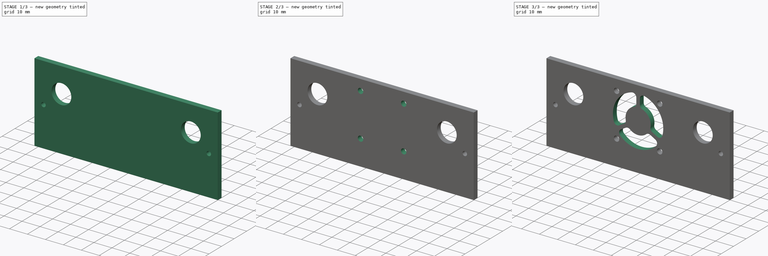
[diagram: build sequence overview — one tinted view per stage of 3, left to right]
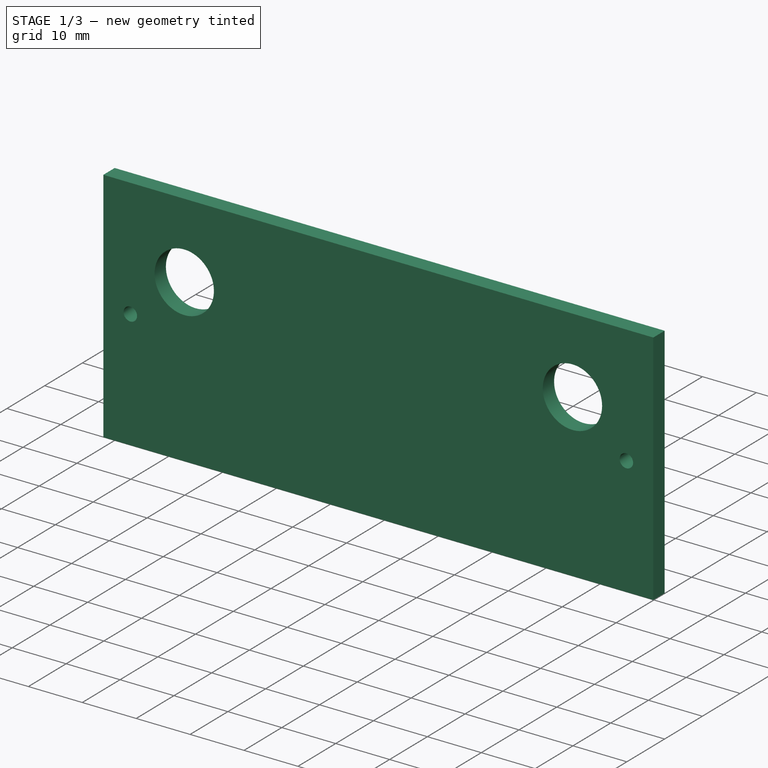
[diagram: stage 1 of 3 — iso view after this stage's code; geometry added in this stage tinted green]
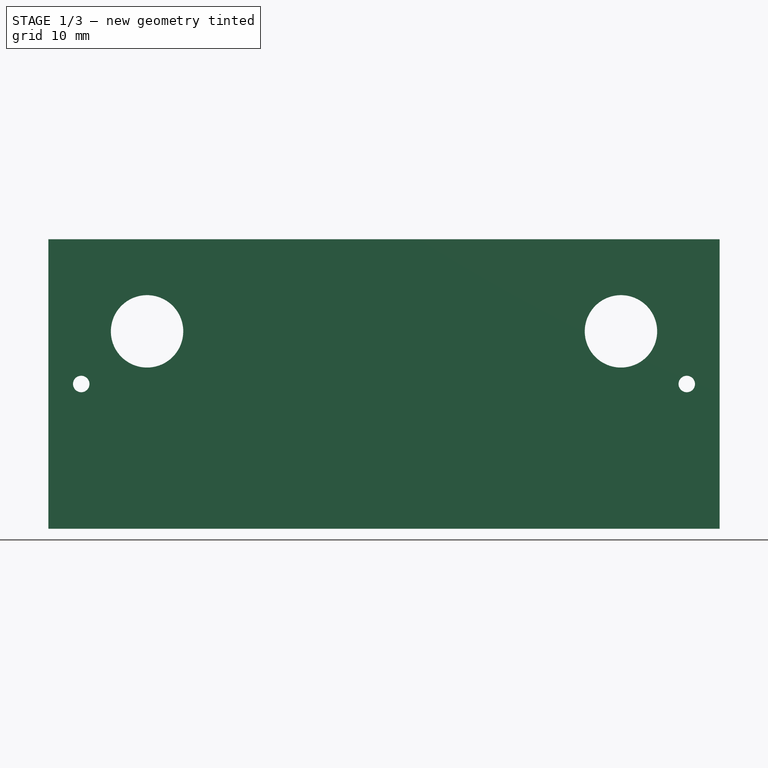
[diagram: stage 1 of 3 — front view after this stage's code; geometry added in this stage tinted green]
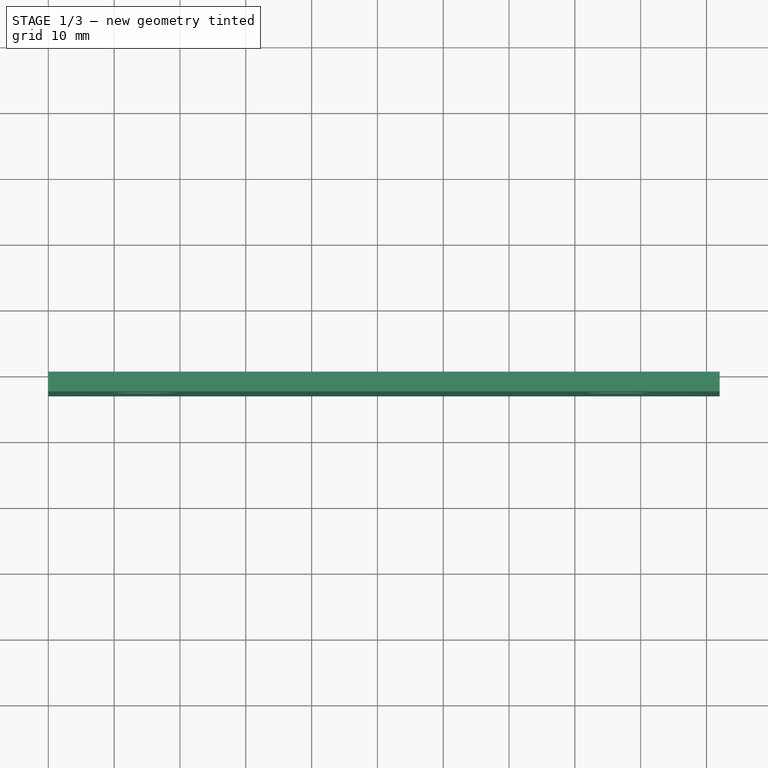
[diagram: stage 1 of 3 — top view after this stage's code; geometry added in this stage tinted green]
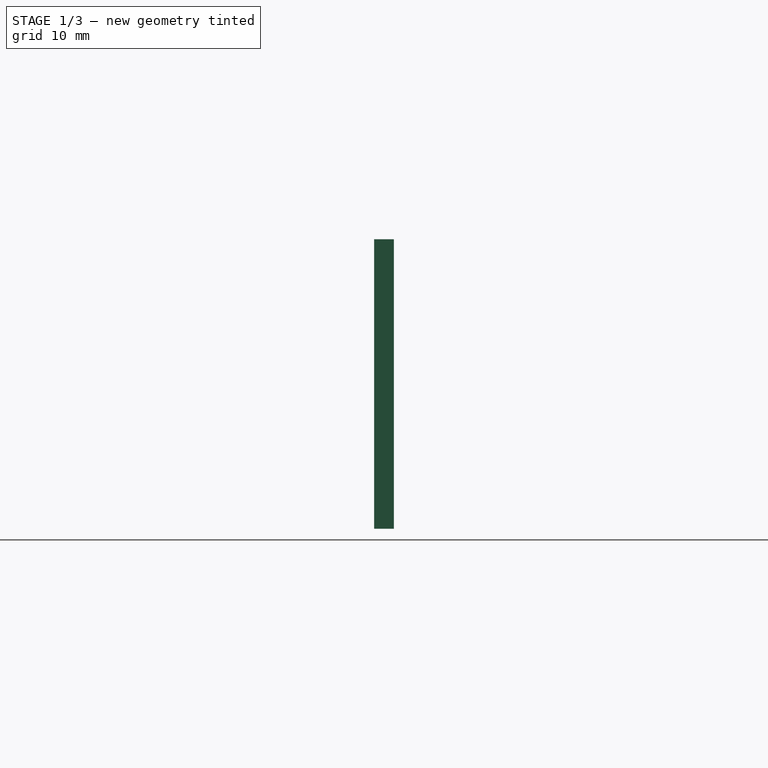
[diagram: stage 1 of 3 — right view after this stage's code; geometry added in this stage tinted green]
FCSTD DOCUMENT  (FreeCAD 0.17R13522 (Git))
Label: Corelia_0_Electronics_fan_plate
License: All rights reserved
LicenseURL: http://en.wikipedia.org/wiki/All_rights_reserved
objects: Sketcher::SketchObject×4, PartDesign::Pocket×3, PartDesign::Pad×1, PartDesign::Fillet×1, PartDesign::Body×1, TechDraw::DrawSVGTemplate×1, TechDraw::DrawViewPart×1, TechDraw::DrawPage×1
note: 14 computed .brp shape members not serialized (recipe doc carries the construction recipe); baked Part::Feature solids carry a one-line shape summary decoded from their .brp

FEATURE [Sketcher::SketchObject] Sketch
  MapMode = 5
  Placement = pos=(0,0,0) rot=(1,0,0;1.5708rad)
  Support = -> [XZ_Plane]
  sketch-geometry (7):
    g0: LineSegment StartX=0 StartY=0 StartZ=0 EndX=102 EndY=0 EndZ=0
    g1: LineSegment StartX=102 StartY=0 StartZ=0 EndX=102 EndY=44 EndZ=0
    g2: LineSegment StartX=102 StartY=44 StartZ=0 EndX=0 EndY=44 EndZ=0
    g3: LineSegment StartX=0 StartY=44 StartZ=0 EndX=0 EndY=0 EndZ=0
    g4: Circle CenterX=5 CenterY=22 CenterZ=0 NormalX=0 NormalY=0 NormalZ=1 AngleXU=0 Radius=1.25
    g5: Circle CenterX=97 CenterY=22 CenterZ=0 NormalX=0 NormalY=0 NormalZ=1 AngleXU=0 Radius=1.25
    g6: LineSegment [constr] StartX=5 StartY=22 StartZ=0 EndX=97 EndY=22 EndZ=0
  constraints (19):
    c: Coincident(g0,g1)
    c: Coincident(g1,g2)
    c: Coincident(g2,g3)
    c: Coincident(g3,g0)
    c: Horizontal(g0)
    c: Horizontal(g2)
    c: Vertical(g1)
    c: Vertical(g3)
    c: Coincident(g0,g-1)
    c: DistanceY(g3,g3) = 44
    c: DistanceX(g0,g0) = 102
    c: Coincident(g6,g4)
    c: Coincident(g6,g5)
    c: Horizontal(g6)
    c: Equal(g4,g5)
    c: DistanceX(g6,g6) = 92
    c: DistanceX(g4) = 5
    c: DistanceY(g4) = 22
    c: Radius(g4) = 1.25
FEATURE [PartDesign::Pad] Pad
  Length = 3
  Length2 = 100
  Placement = pos=(0,0,0) rot=(1,0,0;1.5708rad)
  Profile = -> Sketch
  Type = 0
FEATURE [Sketcher::SketchObject] Sketch001
  MapMode = 5
  Placement = pos=(0,-3,0) rot=(1,0,0;1.5708rad)
  Support = -> [Pad]
  sketch-geometry (3):
    g0: Circle CenterX=15 CenterY=30 CenterZ=0 NormalX=0 NormalY=0 NormalZ=1 AngleXU=0 Radius=5.5
    g1: Circle CenterX=87 CenterY=30 CenterZ=0 NormalX=0 NormalY=0 NormalZ=1 AngleXU=0 Radius=5.5
    g2: LineSegment [constr] StartX=15 StartY=30 StartZ=0 EndX=87 EndY=30 EndZ=0
  constraints (8):
    c: Coincident(g2,g0)
    c: Coincident(g2,g1)
    c: Horizontal(g2)
    c: Radius(g0) = 5.5
    c: Equal(g0,g1)
    c: DistanceX(g0) = 15
    c: DistanceY(g0) = 30
    c: DistanceX(g2,g2) = 72  '102-24'
FEATURE [PartDesign::Pocket] Pocket
  BaseFeature = -> Pad
  Length = 5
  Length2 = 100
  Placement = pos=(0,0,0) rot=(1,0,0;1.5708rad)
  Profile = -> Sketch001
  Type = 1
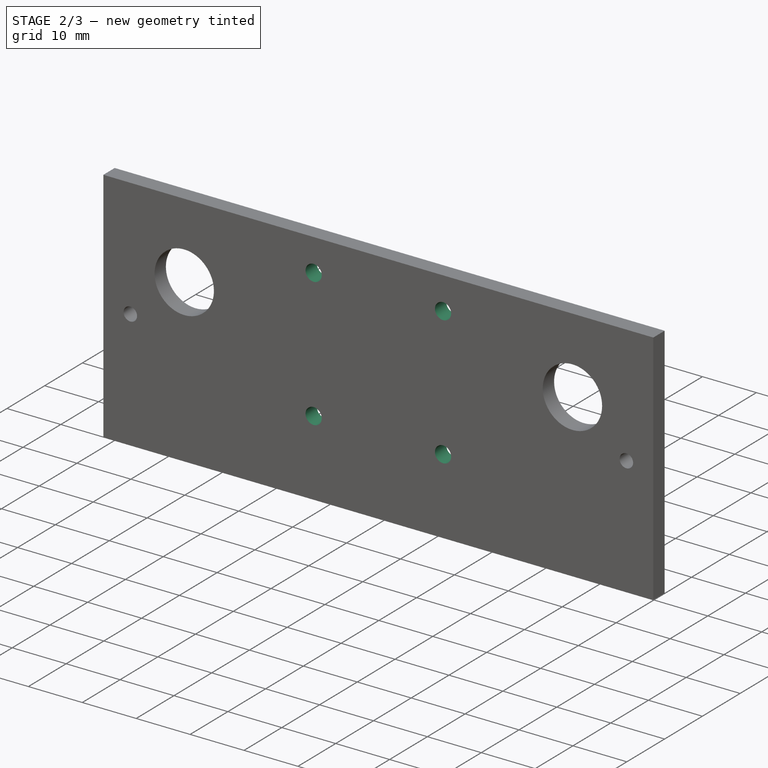
[diagram: stage 2 of 3 — iso view after this stage's code; geometry added in this stage tinted green]
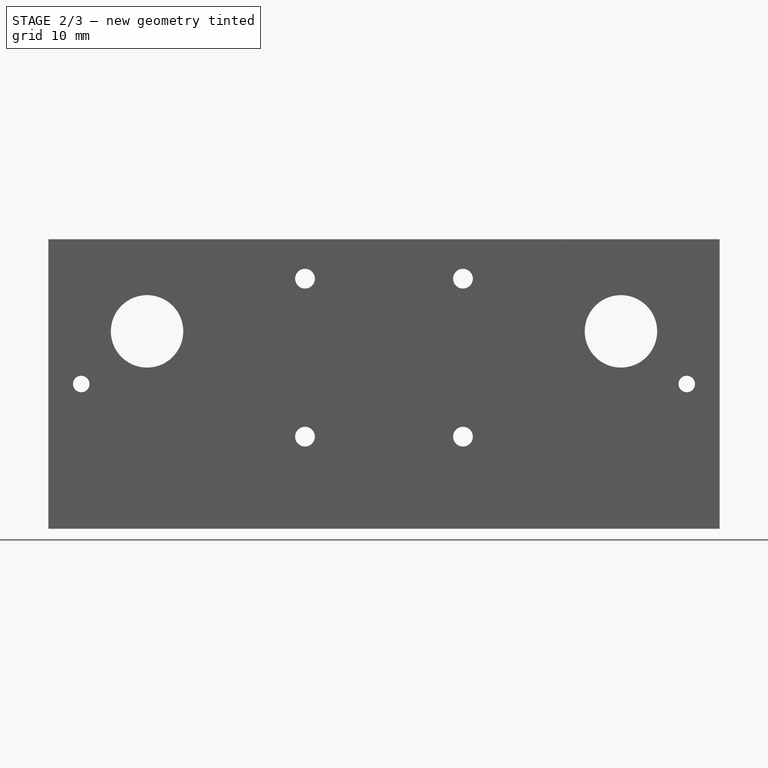
[diagram: stage 2 of 3 — front view after this stage's code; geometry added in this stage tinted green]
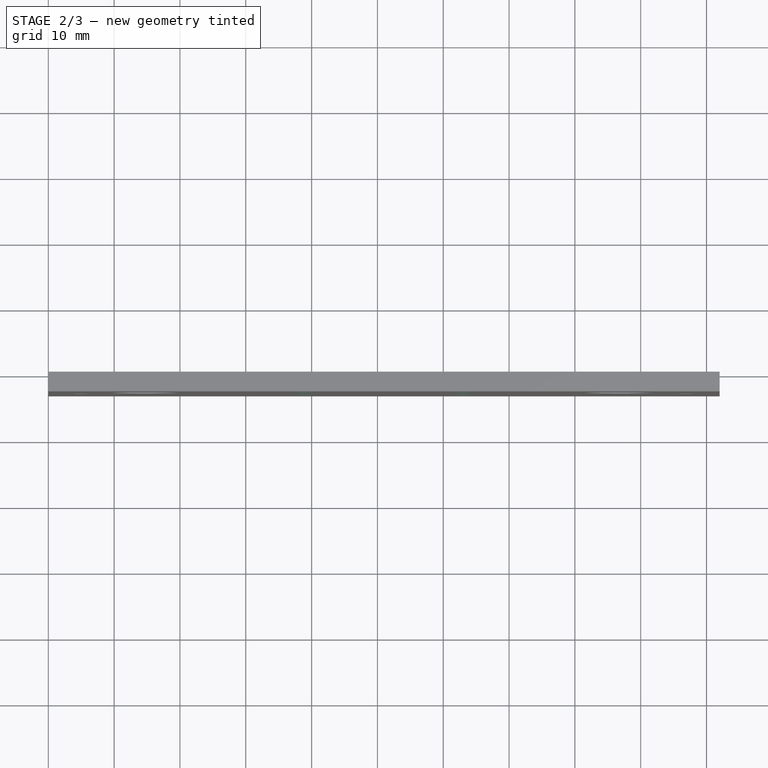
[diagram: stage 2 of 3 — top view after this stage's code; geometry added in this stage tinted green]
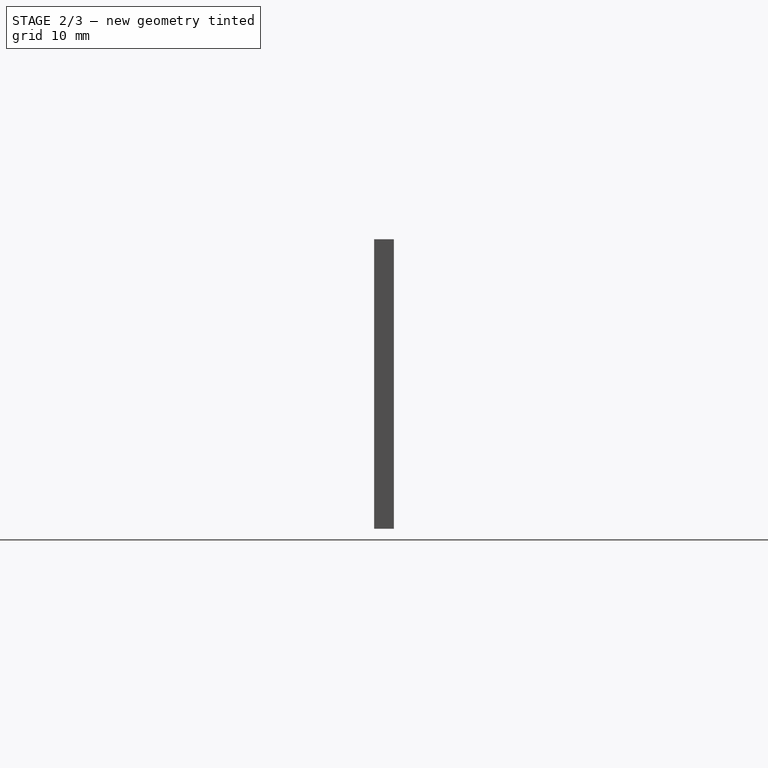
[diagram: stage 2 of 3 — right view after this stage's code; geometry added in this stage tinted green]
FEATURE [Sketcher::SketchObject] Sketch002
  MapMode = 5
  Placement = pos=(0,-3,0) rot=(1,0,0;1.5708rad)
  Support = -> [Pocket]
  sketch-geometry (10):
    g0: LineSegment [constr] StartX=39 StartY=38 StartZ=0 EndX=63 EndY=38 EndZ=0
    g1: LineSegment [constr] StartX=63 StartY=38 StartZ=0 EndX=63 EndY=14 EndZ=0
    g2: LineSegment [constr] StartX=63 StartY=14 StartZ=0 EndX=39 EndY=14 EndZ=0
    g3: LineSegment [constr] StartX=39 StartY=14 StartZ=0 EndX=39 EndY=38 EndZ=0
    g4: Circle CenterX=39 CenterY=38 CenterZ=0 NormalX=0 NormalY=0 NormalZ=1 AngleXU=0 Radius=1.5
    g5: Circle CenterX=63 CenterY=38 CenterZ=0 NormalX=0 NormalY=0 NormalZ=1 AngleXU=0 Radius=1.5
    g6: Circle CenterX=39 CenterY=14 CenterZ=0 NormalX=0 NormalY=0 NormalZ=1 AngleXU=0 Radius=1.5
    g7: Circle CenterX=63 CenterY=14 CenterZ=0 NormalX=0 NormalY=0 NormalZ=1 AngleXU=0 Radius=1.5
    g8: LineSegment [constr] StartX=39 StartY=38 StartZ=0 EndX=51 EndY=26 EndZ=0
    g9: LineSegment [constr] StartX=51 StartY=26 StartZ=0 EndX=63 EndY=14 EndZ=0
  constraints (25):
    c: Coincident(g0,g1)
    c: Coincident(g1,g2)
    c: Coincident(g2,g3)
    c: Coincident(g3,g0)
    c: Horizontal(g0)
    c: Horizontal(g2)
    c: Vertical(g1)
    c: Vertical(g3)
    c: Coincident(g4,g0)
    c: Coincident(g5,g0)
    c: Coincident(g6,g2)
    c: Coincident(g7,g1)
    c: Equal(g6,g4)
    c: Equal(g4,g5)
    c: Equal(g5,g7)
    c: Coincident(g8,g0)
    c: Coincident(g9,g1)
    c: PointOnObject(g0,g9)
    c: Equal(g8,g9)
    c: Equal(g0,g3)
    c: Radius(g4) = 1.5
    c: DistanceY(g3,g3) = 24
    c: Coincident(g9,g8)
    c: DistanceX(g8) = 51
    c: DistanceY(g8) = 26
FEATURE [PartDesign::Pocket] Pocket001
  BaseFeature = -> Pocket
  Length = 5
  Length2 = 100
  Placement = pos=(0,0,0) rot=(1,0,0;1.5708rad)
  Profile = -> Sketch002
  Type = 1
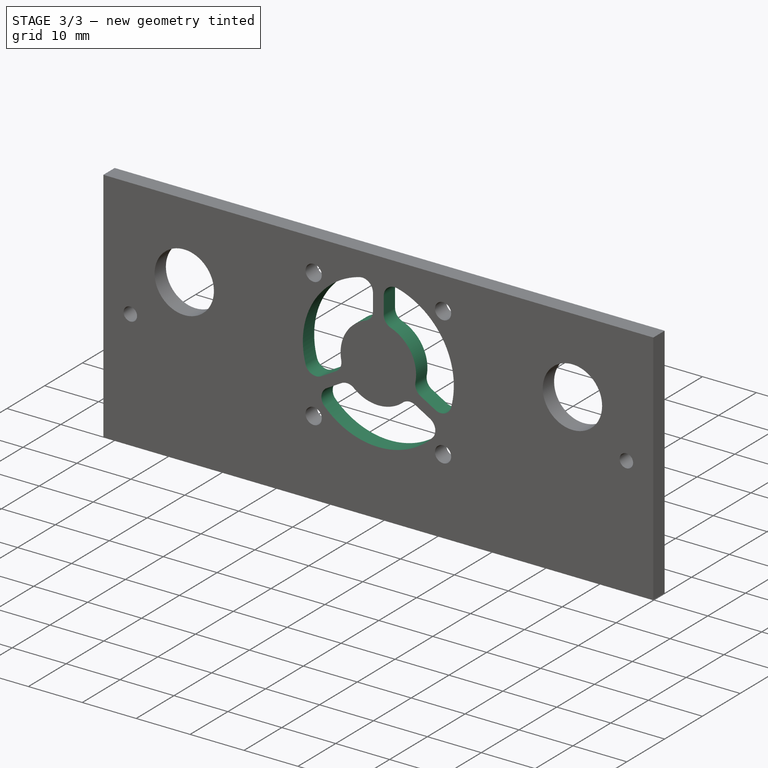
[diagram: stage 3 of 3 — iso view after this stage's code; geometry added in this stage tinted green]
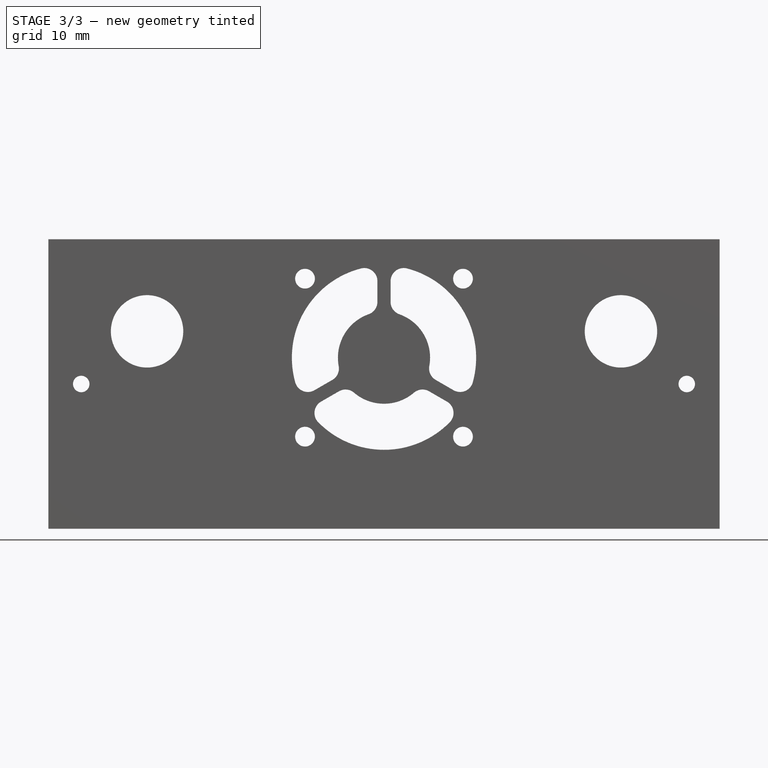
[diagram: stage 3 of 3 — front view after this stage's code; geometry added in this stage tinted green]
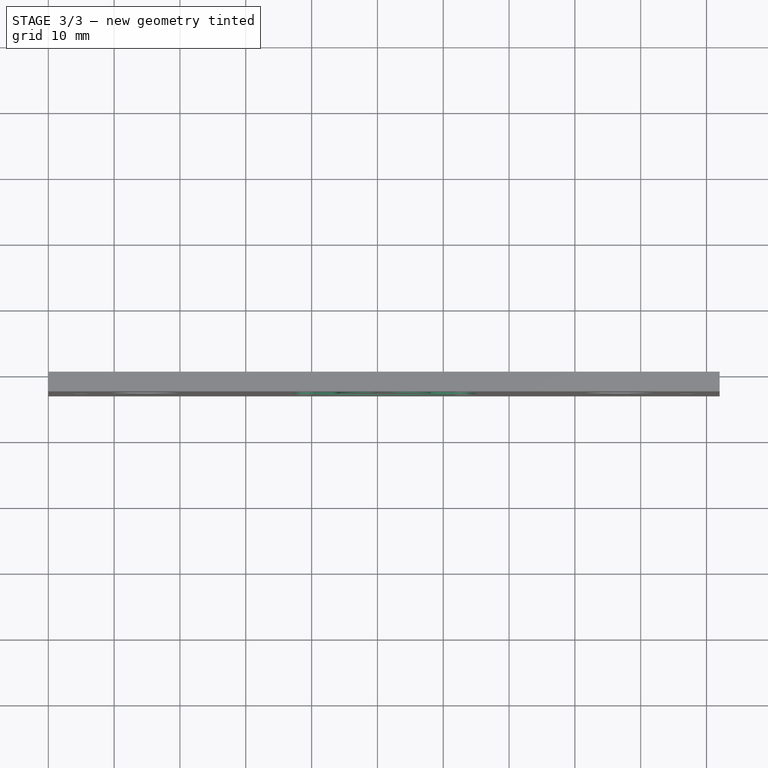
[diagram: stage 3 of 3 — top view after this stage's code; geometry added in this stage tinted green]
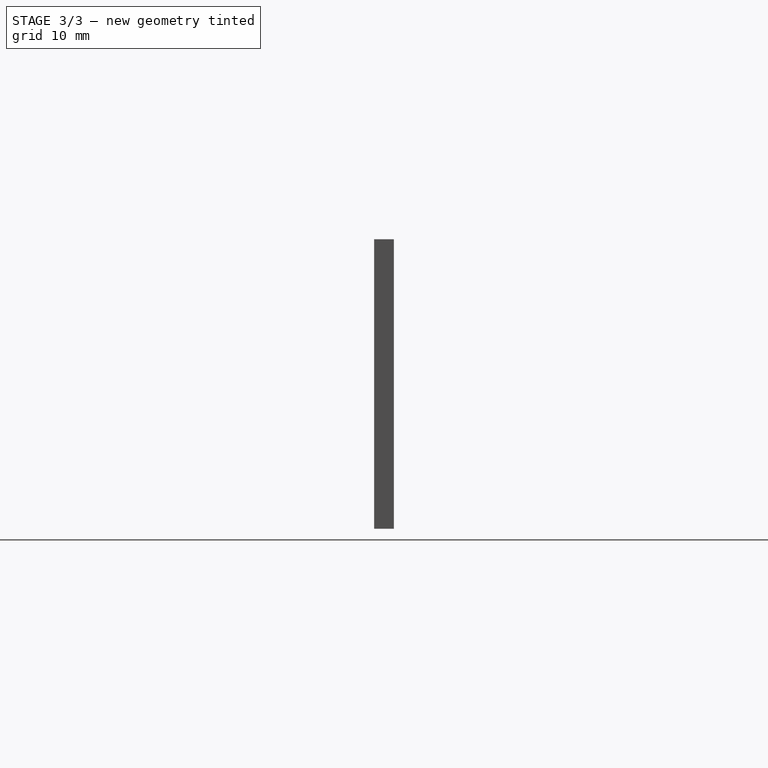
[diagram: stage 3 of 3 — right view after this stage's code; geometry added in this stage tinted green]
FEATURE [Sketcher::SketchObject] Sketch003
  MapMode = 5
  Placement = pos=(0,-3,0) rot=(1,0,0;1.5708rad)
  Support = -> [Pocket001]
  sketch-geometry (16):
    g0: LineSegment [constr] StartX=51 StartY=26 StartZ=0 EndX=51 EndY=40 EndZ=0
    g1: LineSegment [constr] StartX=51 StartY=26 StartZ=0 EndX=38.8756 EndY=19 EndZ=0
    g2: LineSegment StartX=50 StartY=39.9642 StartZ=0 EndX=50 EndY=32.9282 EndZ=0
    g3: LineSegment StartX=38.4069 StartY=19.8833 StartZ=0 EndX=44.5002 EndY=23.4013 EndZ=0
    g4: ArcOfCircle CenterX=51 CenterY=26 CenterZ=0 NormalX=0 NormalY=0 NormalZ=1 AngleXU=0 Radius=7 StartAngle=1.71414 EndAngle=3.52194
    g5: ArcOfCircle CenterX=51 CenterY=26 CenterZ=0 NormalX=0 NormalY=0 NormalZ=1 AngleXU=0 Radius=14 StartAngle=1.64229 EndAngle=3.59375
    g6: GeomPoint X=51 Y=26 Z=0
    g7: LineSegment [constr] StartX=51 StartY=26 StartZ=0 EndX=63.1244 EndY=19 EndZ=0
    g8: LineSegment StartX=39.407 StartY=18.1513 StartZ=0 EndX=45.5004 EndY=21.6694 EndZ=0
    g9: LineSegment StartX=56.5004 StartY=21.6704 StartZ=0 EndX=62.5937 EndY=18.1524 EndZ=0
    g10: LineSegment StartX=57.5002 StartY=23.4025 StartZ=0 EndX=63.5937 EndY=19.8845 EndZ=0
    g11: LineSegment StartX=52 StartY=32.9282 StartZ=0 EndX=52 EndY=39.9642 EndZ=0
    g12: ArcOfCircle CenterX=51 CenterY=26 CenterZ=0 NormalX=0 NormalY=0 NormalZ=1 AngleXU=0 Radius=7 StartAngle=3.80863 EndAngle=5.61633
    g13: ArcOfCircle CenterX=51 CenterY=26 CenterZ=0 NormalX=0 NormalY=0 NormalZ=1 AngleXU=0 Radius=14 StartAngle=3.73673 EndAngle=5.68814
    g14: ArcOfCircle CenterX=51 CenterY=26 CenterZ=0 NormalX=0 NormalY=0 NormalZ=1 AngleXU=0 Radius=7 StartAngle=5.90303 EndAngle=7.71063
    g15: ArcOfCircle CenterX=51 CenterY=26 CenterZ=0 NormalX=0 NormalY=0 NormalZ=1 AngleXU=0 Radius=14 StartAngle=5.83112 EndAngle=7.78249
  constraints (47):
    c: Vertical(g0)
    c: DistanceX(g0) = 51
    c: DistanceY(g0) = 26
    c: DistanceY(g0,g0) = 14
    c: Coincident(g1,g0)
    c: Equal(g1,g0)
    c: Angle(g0,g1) = 2.0944
    c: Vertical(g2)
    c: Parallel(g3,g1)
    c: Coincident(g4,g0)
    c: Coincident(g4,g3)
    c: Coincident(g4,g2)
    c: Coincident(g5,g0)
    c: Coincident(g5,g3)
    c: Coincident(g5,g2)
    c: Distance(g3,g1) = 1
    c: DistanceX(g2,g0) = 1
    c: Radius(g4) = 7
    c: Radius(g5) = 14
    c: Coincident(g6,g0)
    c: Coincident(g7,g0)
    c: Equal(g7,g0)
    c: Vertical(g11)
    c: Coincident(g12,g0)
    c: Coincident(g12,g8)
    c: Coincident(g12,g9)
    c: Coincident(g13,g0)
    c: Coincident(g13,g8)
    c: Coincident(g13,g9)
    c: Coincident(g14,g0)
    c: Coincident(g14,g10)
    c: Coincident(g14,g11)
    c: Coincident(g15,g0)
    c: Coincident(g15,g10)
    c: Coincident(g15,g11)
    c: Parallel(g9,g10)
    c: Parallel(g3,g8)
    c: Distance(g3,g8) = 2
    c: Distance(g9,g10) = 2
    c: Equal(g4,g12)
    c: Equal(g12,g14)
    c: Equal(g5,g13)
    c: Equal(g13,g15)
    c: Parallel(g9,g7)
    c: Distance(g9,g7) = 1
    c: Angle(g7,g0) = 2.0944
    c: DistanceX(g2,g11) = 2
FEATURE [PartDesign::Pocket] Pocket002
  BaseFeature = -> Pocket001
  Length = 5
  Length2 = 100
  Placement = pos=(0,0,0) rot=(1,0,0;1.5708rad)
  Profile = -> Sketch003
  Type = 1
FEATURE [PartDesign::Fillet] Fillet
  Base = -> Pocket002 [Edge57,Edge58,Edge64,Edge62,Edge66,Edge61,Edge60,Edge63,Edge56,Edge55,Edge67,Edge65]
  BaseFeature = -> Pocket002
  Placement = pos=(0,0,0) rot=(1,0,0;1.5708rad)
  Radius = 2
FEATURE [PartDesign::Body] Body
  Group = -> [Sketch,Pad,Sketch001,Pocket,Sketch002,Pocket001,Sketch003,Pocket002,Fillet]
  Origin = -> Origin
  Tip = -> Fillet
FEATURE [TechDraw::DrawSVGTemplate] Template
  Height = 210
  Orientation = 1
  Width = 297
FEATURE [TechDraw::DrawViewPart] View
  CoarseView = false
  Direction = (0,1,0)
  Focus = 100
  HardHidden = false
  IsoCount = 0
  IsoHidden = false
  IsoVisible = false
  LockPosition = false
  Perspective = false
  Rotation = 0
  ScaleType = 0
  SeamHidden = false
  SeamVisible = false
  SmoothHidden = false
  SmoothVisible = false
  Source = -> [Fillet]
  X = 148.5
  Y = 105
FEATURE [TechDraw::DrawPage] Page
  KeepUpdated = true
  ProjectionType = 0
  Template = -> Template
  Views = -> [View]
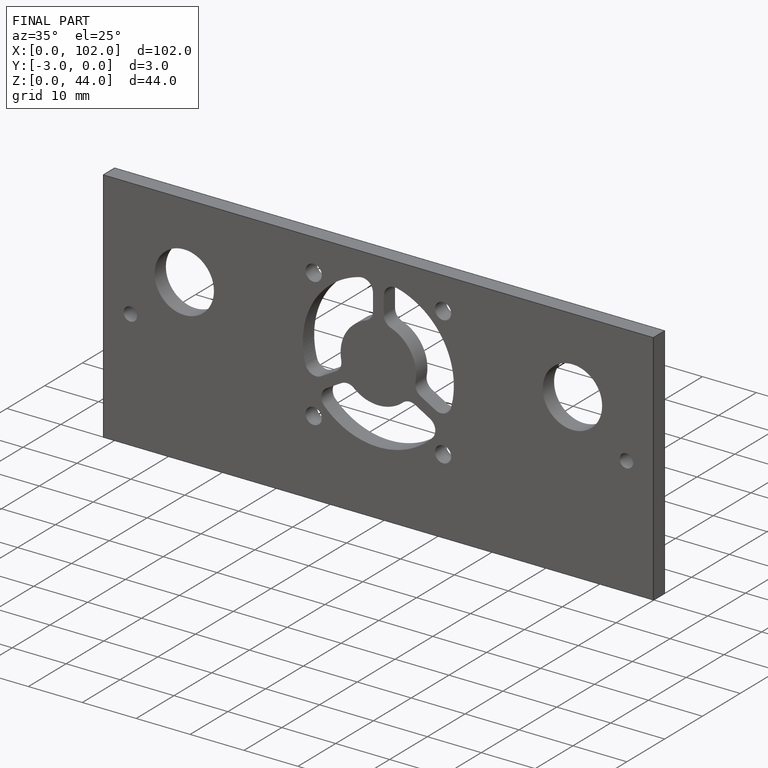
[diagram: finished part — iso view with bounding-box wireframe]
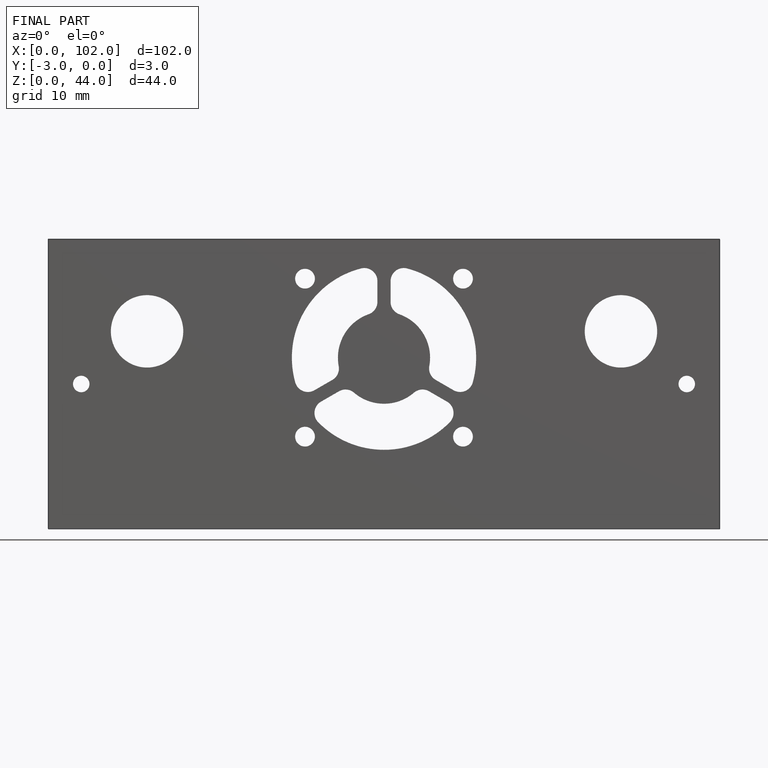
[diagram: finished part — front view with bounding-box wireframe]
